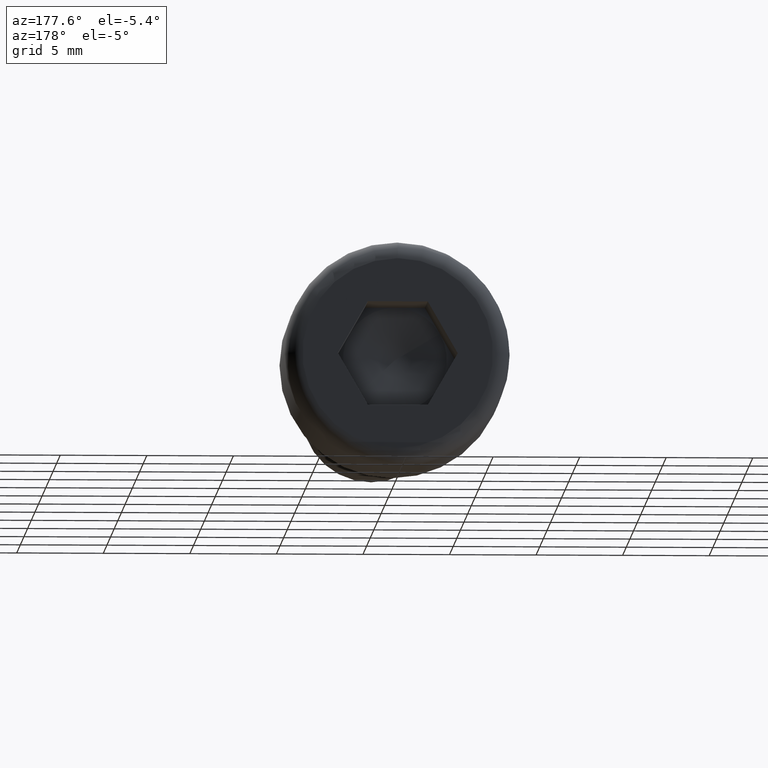
[diagram: clean part render]
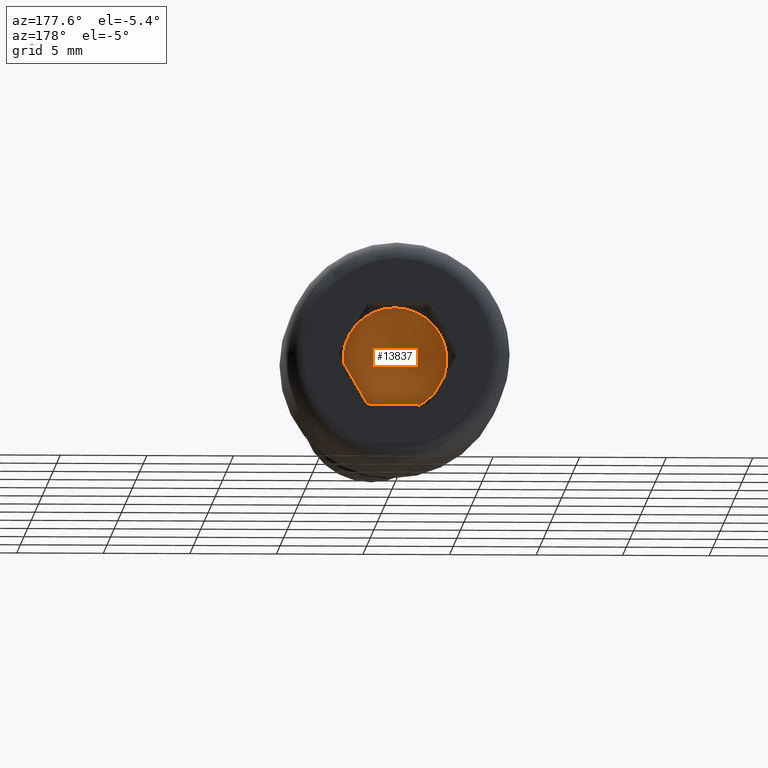
[diagram: same view with one face highlighted and labeled with its STEP entity id]
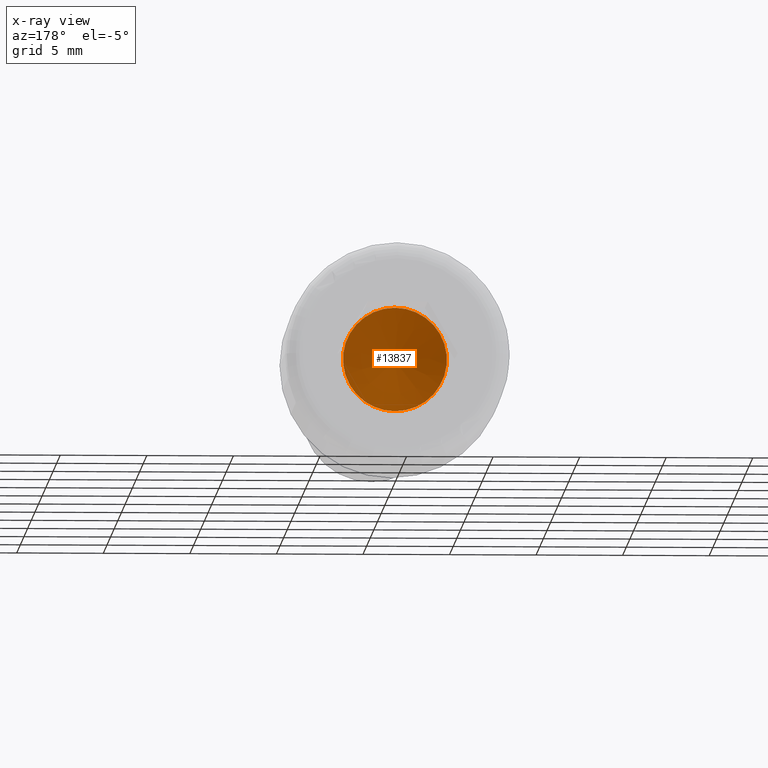
[diagram: x-ray of the same camera — body ghosted, the highlighted face saturated]
A machine part, auxiliary view. The second image highlights one B-rep face of the part: STEP entity #13837.
The next image is the same camera in x-ray: the body ghosted, the highlighted face saturated — about 0% of this face is hidden behind the body in this view.
In plain terms, the highlighted conical surface has half-angle 80.538 deg.
Its self-contained STEP definition (entity closure, byte-faithful):
#100 = DIRECTION ( 'NONE',  ( -1.000000000000000000, -2.891205793294678300E-016, 0.0000000000000000000 ) ) ;
#229 = DIRECTION ( 'NONE',  ( -1.000000000000000000, -2.891205793294678300E-016, 0.0000000000000000000 ) ) ;
#463 = VERTEX_POINT ( 'NONE', #2386 ) ;
#1286 = DIRECTION ( 'NONE',  ( -1.000000000000000000, -2.891205793294678300E-016, 0.0000000000000000000 ) ) ;
#1693 = ORIENTED_EDGE ( 'NONE', *, *, #3423, .T. ) ;
#2386 = CARTESIAN_POINT ( 'NONE',  ( -5.333242336302395600E-016, 3.999999999999998200, -3.000000000000000000 ) ) ;
#2438 = CARTESIAN_POINT ( 'NONE',  ( -3.154911678919006500E-013, 1003.500000000000100, 0.0000000000000000000 ) ) ;
#2532 = VERTEX_POINT ( 'NONE', #6870 ) ;
#2752 = ORIENTED_EDGE ( 'NONE', *, *, #7937, .T. ) ;
#2826 = DIRECTION ( 'NONE',  ( -3.154911678919006400E-016, 1.000000000000000000, -0.0000000000000000000 ) ) ;
#3412 = ORIENTED_EDGE ( 'NONE', *, *, #13276, .T. ) ;
#3423 = EDGE_CURVE ( 'NONE', #13488, #2532, #13254, .T. ) ;
#3472 = EDGE_CURVE ( 'NONE', #16265, #13488, #4487, .T. ) ;
#3987 = ORIENTED_EDGE ( 'NONE', *, *, #4304, .T. ) ;
#4127 = DIRECTION ( 'NONE',  ( -1.000000000000000000, -2.891205793294678300E-016, 0.0000000000000000000 ) ) ;
#4199 = AXIS2_PLACEMENT_3D ( 'NONE', #7275, #16304, #4877 ) ;
#4237 = CARTESIAN_POINT ( 'NONE',  ( -1.577455839459496000E-016, 3.999999999999998200, 0.0000000000000000000 ) ) ;
#4304 = EDGE_CURVE ( 'NONE', #13649, #463, #11854, .T. ) ;
#4487 = CIRCLE ( 'NONE', #11639, 3.000000000000000000 ) ;
#4877 = DIRECTION ( 'NONE',  ( -1.000000000000000000, -2.891205793294678300E-016, 0.0000000000000000000 ) ) ;
#4958 = AXIS2_PLACEMENT_3D ( 'NONE', #9197, #5274, #229 ) ;
#5027 = CARTESIAN_POINT ( 'NONE',  ( -1.577455839459496000E-016, 3.999999999999998200, 0.0000000000000000000 ) ) ;
#5274 = DIRECTION ( 'NONE',  ( -3.154911678919006400E-016, 1.000000000000000000, -0.0000000000000000000 ) ) ;
#5480 = ORIENTED_EDGE ( 'NONE', *, *, #10027, .T. ) ;
#6870 = CARTESIAN_POINT ( 'NONE',  ( 2.598076211353316000, 3.999999999999999100, 1.500000000000000900 ) ) ;
#7275 = CARTESIAN_POINT ( 'NONE',  ( -1.577455839459496000E-016, 3.999999999999998200, 0.0000000000000000000 ) ) ;
#7727 = CARTESIAN_POINT ( 'NONE',  ( -1.577455839459496000E-016, 3.999999999999998200, 3.000000000000000000 ) ) ;
#7937 = EDGE_CURVE ( 'NONE', #2532, #13649, #10190, .T. ) ;
#9197 = CARTESIAN_POINT ( 'NONE',  ( -1.577455839459496000E-016, 3.999999999999998200, 0.0000000000000000000 ) ) ;
#10027 = EDGE_CURVE ( 'NONE', #11195, #16265, #14558, .T. ) ;
#10169 = AXIS2_PLACEMENT_3D ( 'NONE', #2438, #13874, #16527 ) ;
#10190 = CIRCLE ( 'NONE', #12292, 3.000000000000000000 ) ;
#10216 = CARTESIAN_POINT ( 'NONE',  ( -1.577455839459496000E-016, 3.999999999999998200, 0.0000000000000000000 ) ) ;
#10519 = CARTESIAN_POINT ( 'NONE',  ( -1.577455839459496000E-016, 3.999999999999998200, 0.0000000000000000000 ) ) ;
#11087 = AXIS2_PLACEMENT_3D ( 'NONE', #4237, #2826, #4127 ) ;
#11195 = VERTEX_POINT ( 'NONE', #15141 ) ;
#11296 = DIRECTION ( 'NONE',  ( -3.154911678919006400E-016, 1.000000000000000000, -0.0000000000000000000 ) ) ;
#11639 = AXIS2_PLACEMENT_3D ( 'NONE', #10519, #15686, #15733 ) ;
#11854 = CIRCLE ( 'NONE', #13645, 3.000000000000000000 ) ;
#12073 = CONICAL_SURFACE ( 'NONE', #10169, 6000.000000000028200, 1.405647649380270500 ) ;
#12292 = AXIS2_PLACEMENT_3D ( 'NONE', #5027, #12589, #1286 ) ;
#12589 = DIRECTION ( 'NONE',  ( -3.154911678919006400E-016, 1.000000000000000000, -0.0000000000000000000 ) ) ;
#12696 = CIRCLE ( 'NONE', #4958, 3.000000000000000000 ) ;
#13254 = CIRCLE ( 'NONE', #11087, 3.000000000000000000 ) ;
#13276 = EDGE_CURVE ( 'NONE', #463, #11195, #12696, .T. ) ;
#13488 = VERTEX_POINT ( 'NONE', #7727 ) ;
#13645 = AXIS2_PLACEMENT_3D ( 'NONE', #10216, #11296, #100 ) ;
#13649 = VERTEX_POINT ( 'NONE', #15481 ) ;
#13837 = ADVANCED_FACE ( 'NONE', ( #15271 ), #12073, .F. ) ;
#13874 = DIRECTION ( 'NONE',  ( -3.154911678919006400E-016, 1.000000000000000000, -0.0000000000000000000 ) ) ;
#14042 = EDGE_LOOP ( 'NONE', ( #15266, #1693, #2752, #3987, #3412, #5480 ) ) ;
#14558 = CIRCLE ( 'NONE', #4199, 3.000000000000000000 ) ;
#15141 = CARTESIAN_POINT ( 'NONE',  ( -2.598076211353315600, 3.999999999999997300, -1.499999999999999800 ) ) ;
#15266 = ORIENTED_EDGE ( 'NONE', *, *, #3472, .T. ) ;
#15271 = FACE_OUTER_BOUND ( 'NONE', #14042, .T. ) ;
#15481 = CARTESIAN_POINT ( 'NONE',  ( 2.598076211353315600, 3.999999999999999100, -1.500000000000000900 ) ) ;
#15686 = DIRECTION ( 'NONE',  ( -3.154911678919006400E-016, 1.000000000000000000, -0.0000000000000000000 ) ) ;
#15733 = DIRECTION ( 'NONE',  ( -1.000000000000000000, -2.891205793294678300E-016, 0.0000000000000000000 ) ) ;
#16090 = CARTESIAN_POINT ( 'NONE',  ( -2.598076211353315600, 3.999999999999997300, 1.500000000000000200 ) ) ;
#16265 = VERTEX_POINT ( 'NONE', #16090 ) ;
#16304 = DIRECTION ( 'NONE',  ( -3.154911678919006400E-016, 1.000000000000000000, -0.0000000000000000000 ) ) ;
#16527 = DIRECTION ( 'NONE',  ( -1.000000000000000000, -3.330669073875453800E-016, 0.0000000000000000000 ) ) ;